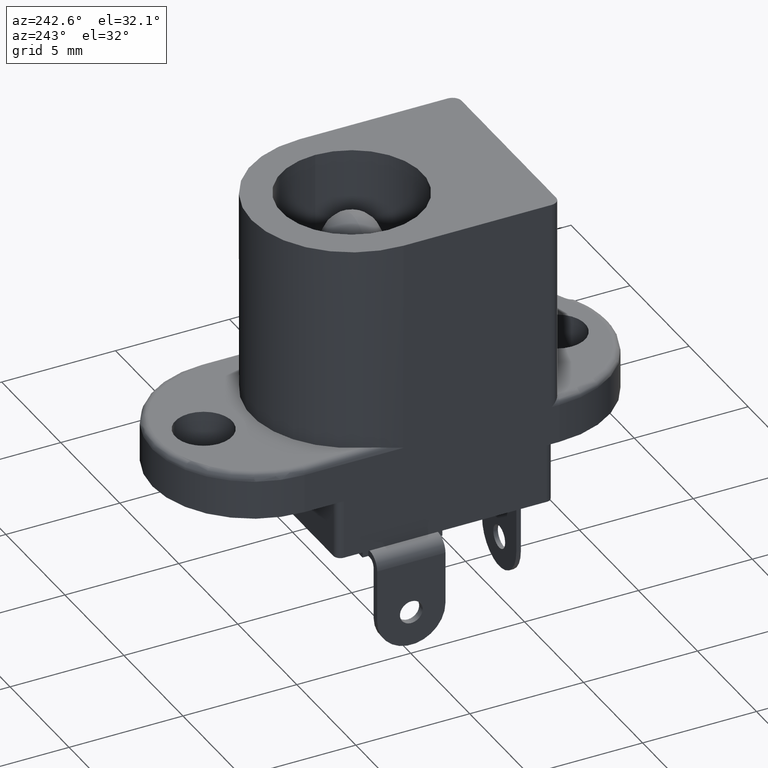
[diagram: clean part render]
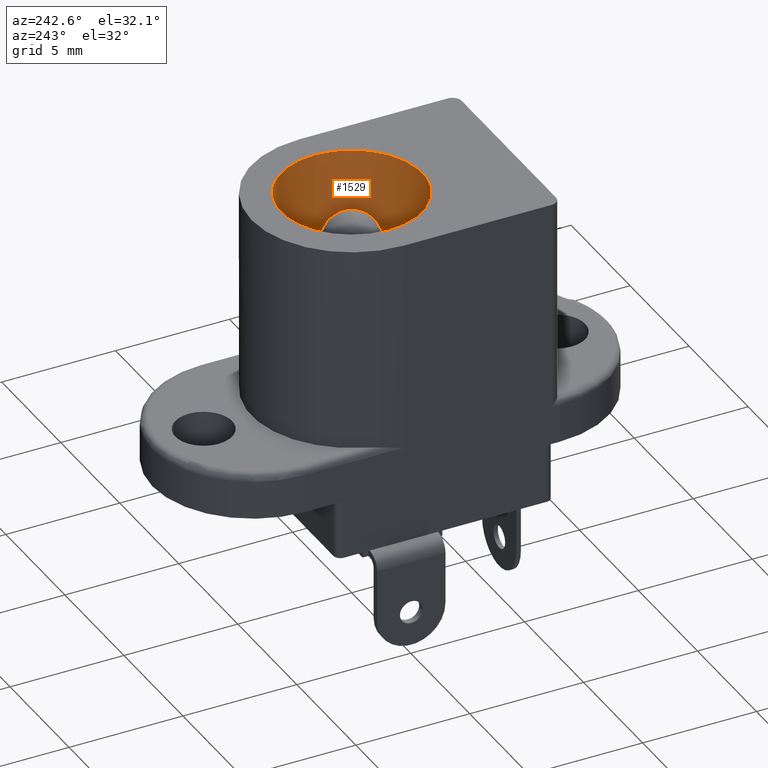
[diagram: same view with one face highlighted and labeled with its STEP entity id]
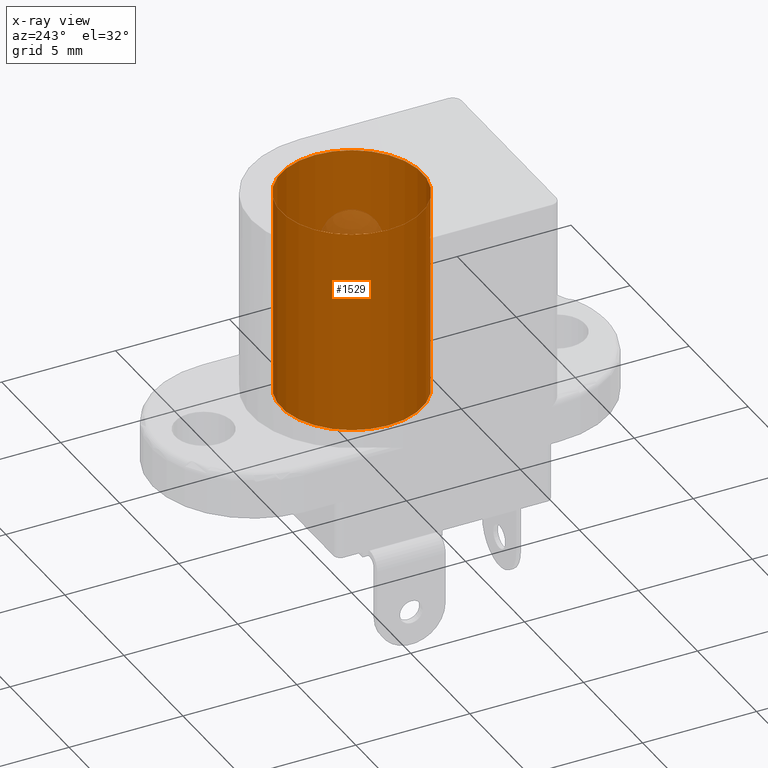
[diagram: x-ray of the same camera — body ghosted, the highlighted face saturated]
A machine part, auxiliary view. The second image highlights one B-rep face of the part: STEP entity #1529.
The next image is the same camera in x-ray: the body ghosted, the highlighted face saturated — about 3% of this face is hidden behind the body in this view.
In plain terms, the highlighted cylindrical surface (bore or boss wall) has radius 3.1 mm, axis along (0, 0, -1).
Its self-contained STEP definition (entity closure, byte-faithful):
#177=LINE('',#2420,#311);
#311=VECTOR('',#1986,3.1);
#369=CYLINDRICAL_SURFACE('',#1659,3.1);
#435=FACE_OUTER_BOUND('',#527,.T.);
#527=EDGE_LOOP('',(#1230,#1231,#1232,#1233));
#601=CIRCLE('',#1660,3.1);
#602=CIRCLE('',#1661,3.1);
#717=VERTEX_POINT('',#2417);
#718=VERTEX_POINT('',#2419);
#897=EDGE_CURVE('',#717,#717,#601,.T.);
#898=EDGE_CURVE('',#717,#718,#177,.T.);
#899=EDGE_CURVE('',#718,#718,#602,.T.);
#1230=ORIENTED_EDGE('',*,*,#897,.F.);
#1231=ORIENTED_EDGE('',*,*,#898,.T.);
#1232=ORIENTED_EDGE('',*,*,#899,.F.);
#1233=ORIENTED_EDGE('',*,*,#898,.F.);
#1529=ADVANCED_FACE('',(#435),#369,.F.);
#1659=AXIS2_PLACEMENT_3D('',#2416,#1982,#1983);
#1660=AXIS2_PLACEMENT_3D('',#2418,#1984,#1985);
#1661=AXIS2_PLACEMENT_3D('',#2421,#1987,#1988);
#1982=DIRECTION('center_axis',(0.,0.,-1.));
#1983=DIRECTION('ref_axis',(-1.,0.,0.));
#1984=DIRECTION('center_axis',(0.,0.,-1.));
#1985=DIRECTION('ref_axis',(-1.,0.,0.));
#1986=DIRECTION('',(0.,0.,-1.));
#1987=DIRECTION('center_axis',(0.,0.,1.));
#1988=DIRECTION('ref_axis',(-1.,0.,0.));
#2416=CARTESIAN_POINT('Origin',(0.,0.,9.));
#2417=CARTESIAN_POINT('',(3.1,-3.7964050773568E-16,9.));
#2418=CARTESIAN_POINT('Origin',(0.,0.,9.));
#2419=CARTESIAN_POINT('',(3.1,-3.7964050773568E-16,1.11022302462516E-15));
#2420=CARTESIAN_POINT('',(3.1,-3.7964050773568E-16,9.));
#2421=CARTESIAN_POINT('Origin',(0.,0.,0.));